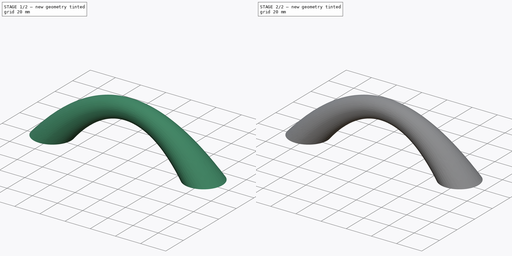
[diagram: build sequence overview — one tinted view per stage of 2, left to right]
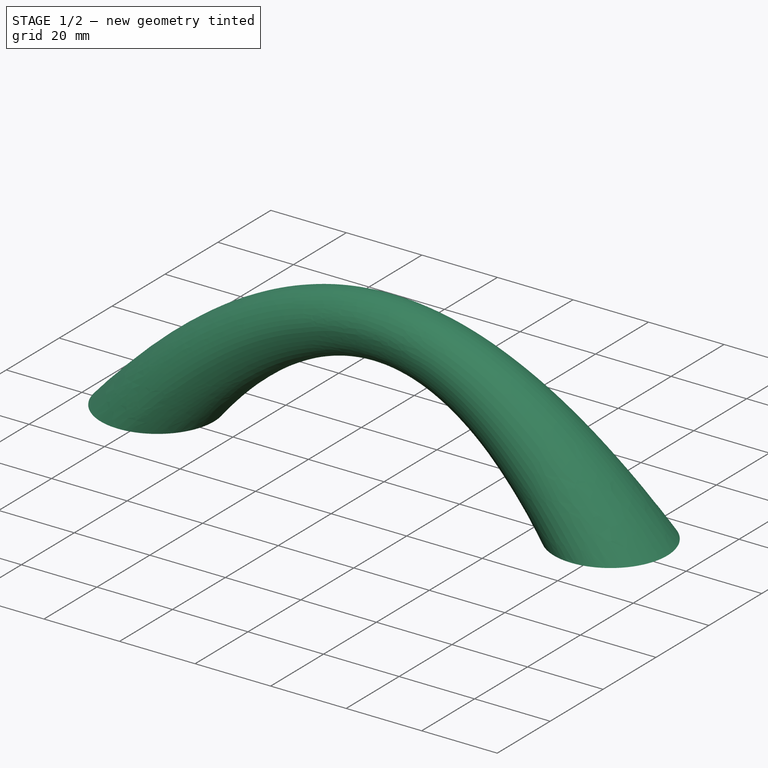
[diagram: stage 1 of 2 — iso view after this stage's code; geometry added in this stage tinted green]
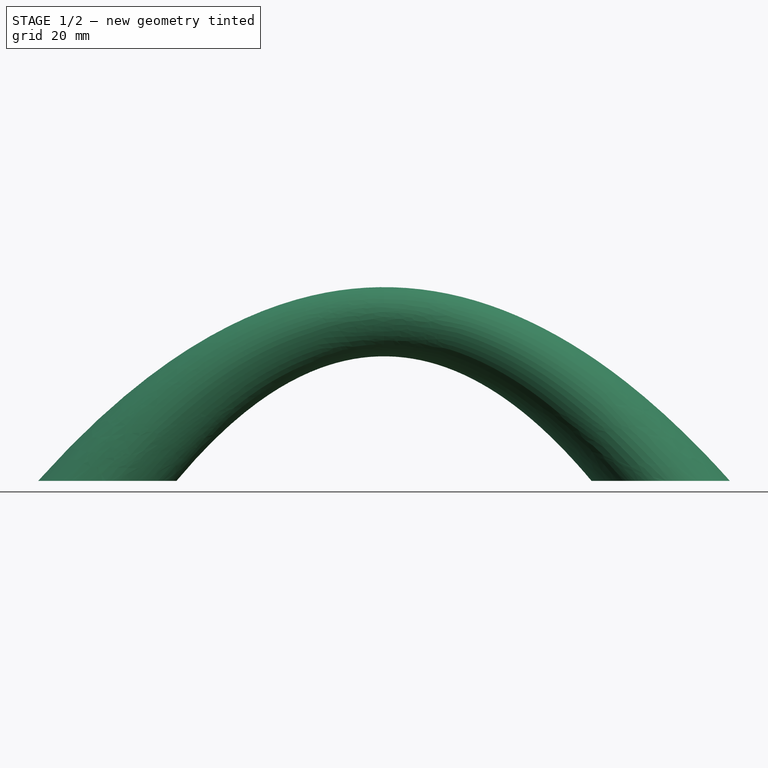
[diagram: stage 1 of 2 — front view after this stage's code; geometry added in this stage tinted green]
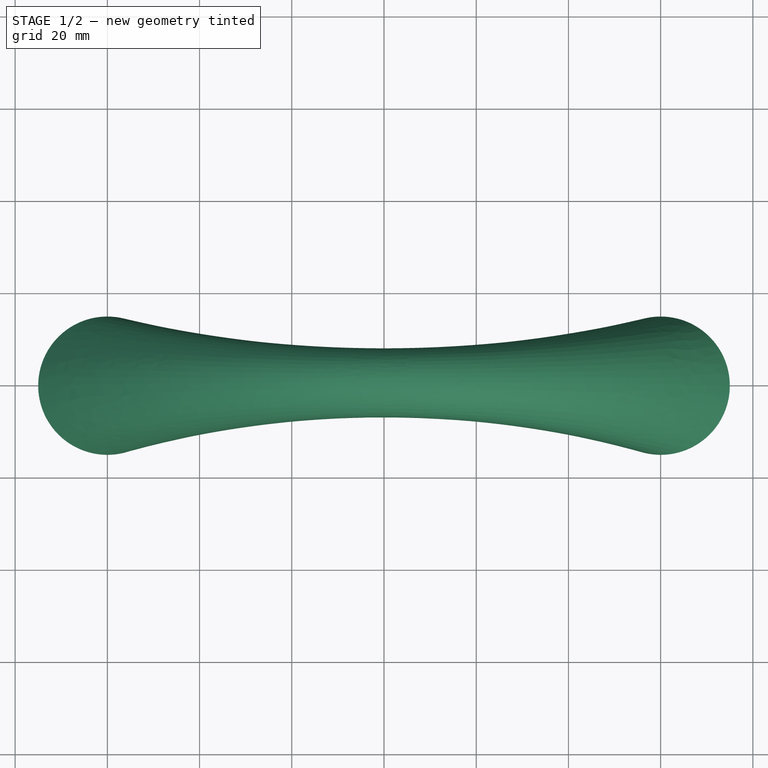
[diagram: stage 1 of 2 — top view after this stage's code; geometry added in this stage tinted green]
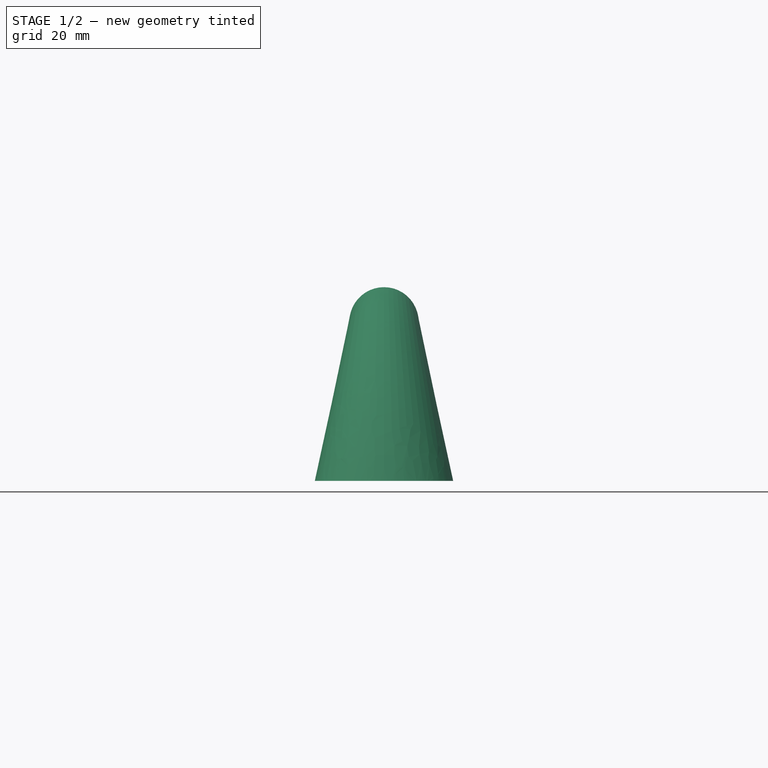
[diagram: stage 1 of 2 — right view after this stage's code; geometry added in this stage tinted green]
FCSTD DOCUMENT  (FreeCAD 2022.111R30764 (Git))
Label: bucket handle
License: All rights reserved
LicenseURL: http://en.wikipedia.org/wiki/All_rights_reserved
objects: Sketcher::SketchObject×5, PartDesign::AdditiveLoft×1, PartDesign::Pocket×1, PartDesign::Body×1
note: 12 computed .brp shape members not serialized (recipe doc carries the construction recipe); baked Part::Feature solids carry a one-line shape summary decoded from their .brp

FEATURE [Sketcher::SketchObject] Sketch001
  FullyConstrained = true
  MapMode = 5
  Support = -> [XY_Plane]
  TreeRank = 12
  sketch-geometry (1):
    g0: Circle CenterX=60 CenterY=0 CenterZ=0 NormalX=0 NormalY=0 NormalZ=1 AngleXU=0 Radius=15
  constraints (3):
    c: PointOnObject(g0,g-1)
    c: Diameter(g0) = 30
    c: DistanceX(g-1,g0) = 60
FEATURE [Sketcher::SketchObject] Sketch
  ExternalGeometry = -> [Sketch001]
  FullyConstrained = true
  MapMode = 5
  Support = -> [XY_Plane]
  TreeRank = 11
  sketch-geometry (1):
    g0: Circle CenterX=-60 CenterY=0 CenterZ=0 NormalX=0 NormalY=0 NormalZ=1 AngleXU=0 Radius=15
  constraints (3):
    c: Equal(g0,g-3)
    c: PointOnObject(g0,g-1)
    c: DistanceX(g0,g-1) = 60
FEATURE [Sketcher::SketchObject] Sketch002
  FullyConstrained = false
  MapMode = 5
  Placement = pos=(0,0,0) rot=(0.57735,0.57735,0.57735;2.0944rad)
  Support = -> [YZ_Plane]
  TreeRank = 13
  sketch-geometry (1):
    g0: Circle CenterX=0 CenterY=34.5052 CenterZ=0 NormalX=0 NormalY=0 NormalZ=1 AngleXU=0 Radius=7.5
  constraints (2):
    c: PointOnObject(g0,g-2)
    c: Diameter(g0) = 15
FEATURE [PartDesign::AdditiveLoft] Loft
  AddSubType = 0
  ClaimChildren = false
  Closed = false
  Fit = 0
  FitJoin = 0
  InnerFit = 0
  InnerFitJoin = 0
  Linearize = true
  NewSolid = false
  Profile = -> Sketch
  Ruled = false
  Sections = -> [Sketch002,Sketch001]
  SplitProfile = false
  Suppress = false
  TreeRank = 14
  _ProfileBasedVersion = 1
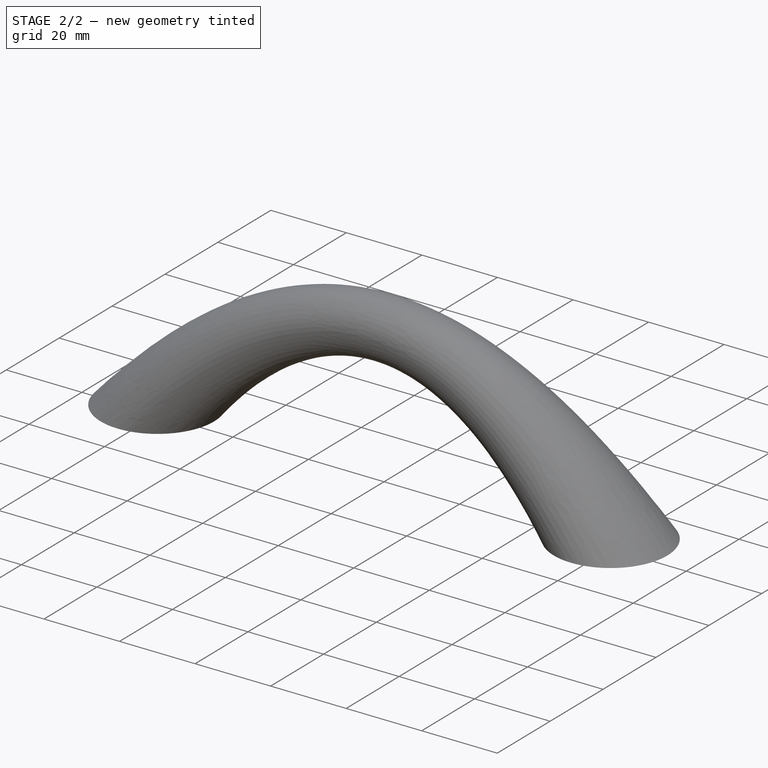
[diagram: stage 2 of 2 — iso view after this stage's code; geometry added in this stage tinted green]
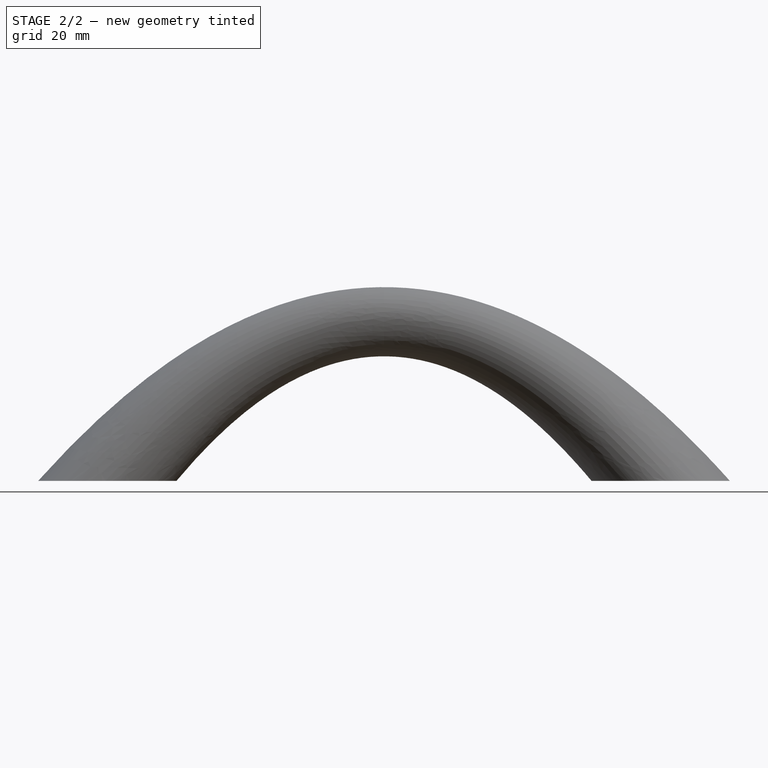
[diagram: stage 2 of 2 — front view after this stage's code; geometry added in this stage tinted green]
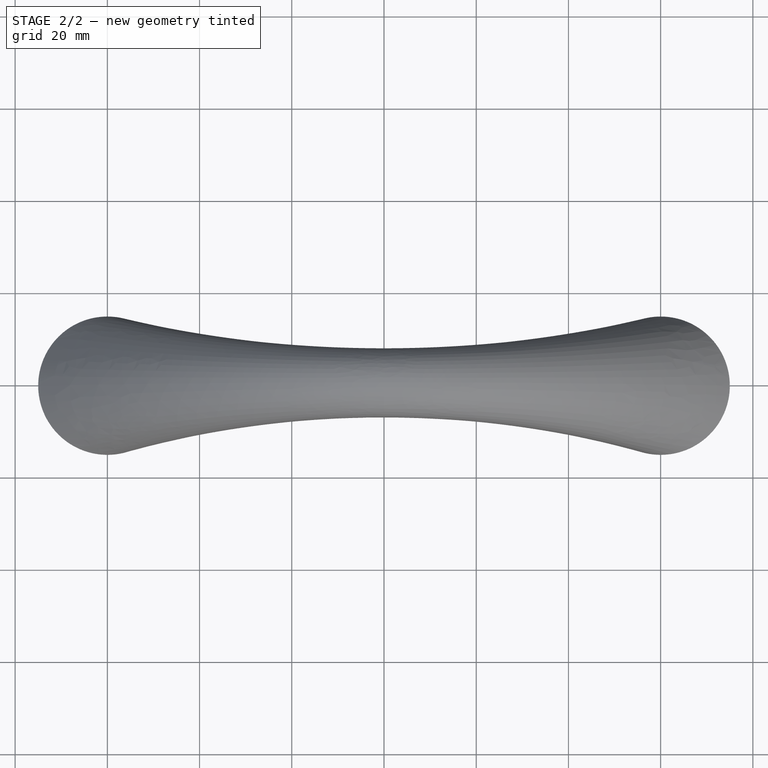
[diagram: stage 2 of 2 — top view after this stage's code; geometry added in this stage tinted green]
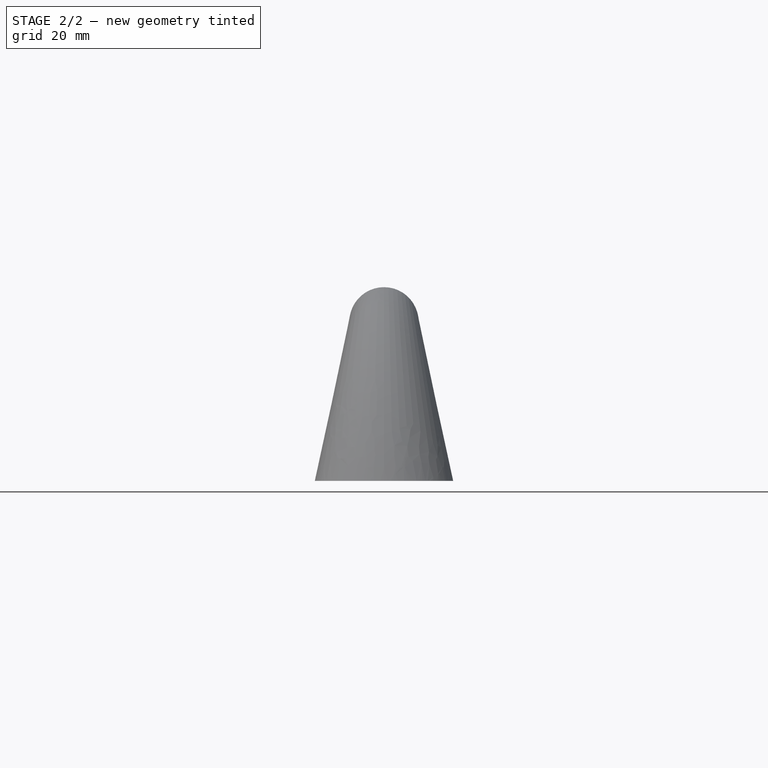
[diagram: stage 2 of 2 — right view after this stage's code; geometry added in this stage tinted green]
FEATURE [Sketcher::SketchObject] Sketch003
  FullyConstrained = true
  MapMode = 5
  Support = -> [XY_Plane]
  TreeRank = 15
FEATURE [Sketcher::SketchObject] Sketch004
  FullyConstrained = true
  MapMode = 5
  Support = -> [XY_Plane]
  TreeRank = 16
  sketch-geometry (2):
    g0: Circle CenterX=-52.5 CenterY=0 CenterZ=0 NormalX=0 NormalY=0 NormalZ=1 AngleXU=0 Radius=1.75
    g1: Circle CenterX=52.5 CenterY=0 CenterZ=0 NormalX=0 NormalY=0 NormalZ=1 AngleXU=0 Radius=1.75
  constraints (5):
    c: PointOnObject(g0,g-1)
    c: Equal(g1,g0)
    c: Symmetric(g1,g0,g-1)
    c: Diameter(g0) = 3.5
    c: DistanceX(g0,g1) = 105
FEATURE [PartDesign::Pocket] Pocket
  AddSubType = 1
  BaseFeature = -> Loft
  CheckUpToFaceLimits = true
  ClaimChildren = false
  Fit = 0
  FitJoin = 0
  InnerFit = 0
  InnerFitJoin = 0
  InnerTaperAngle = 0
  InnerTaperAngleRev = 0
  Length = 18
  Length2 = 100
  Linearize = true
  NewSolid = false
  Profile = -> Sketch004
  Reversed = true
  Suppress = false
  TreeRank = 17
  Type = 0
  _ProfileBasedVersion = 1
  _Version = 1
FEATURE [PartDesign::Body] Body
  AutoGroupSolids = false
  ExportMode = 0
  Group = -> [Sketch,Sketch001,Sketch002,Loft,Sketch003,Sketch004,Pocket]
  Origin = -> Origin
  Tip = -> Pocket
  TreeRank = 10
  _ExportChildren = -> [Loft,Sketch003,Pocket]
  _GroupVersion = 1
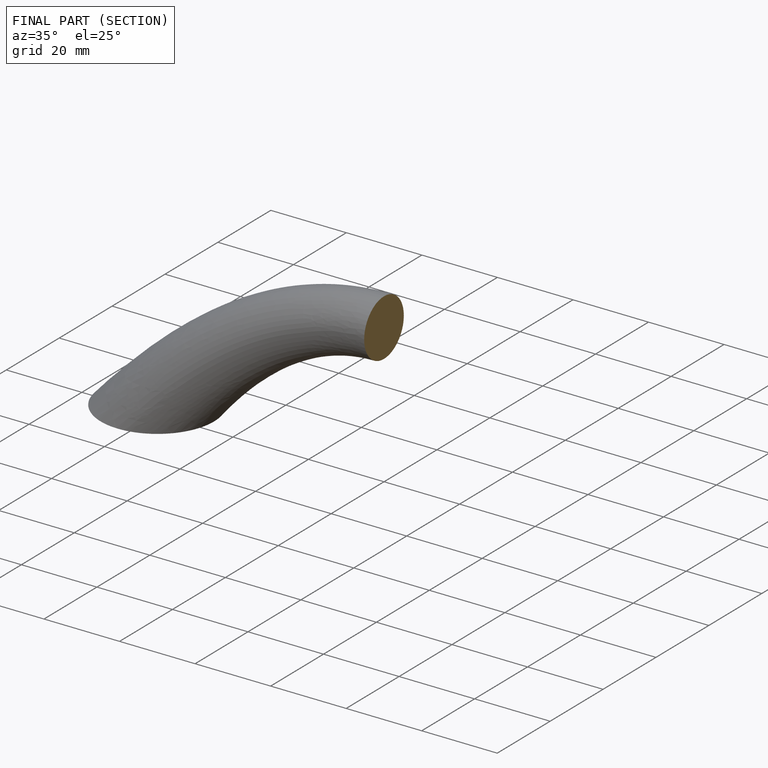
[diagram: finished part — half-section view (interior)]
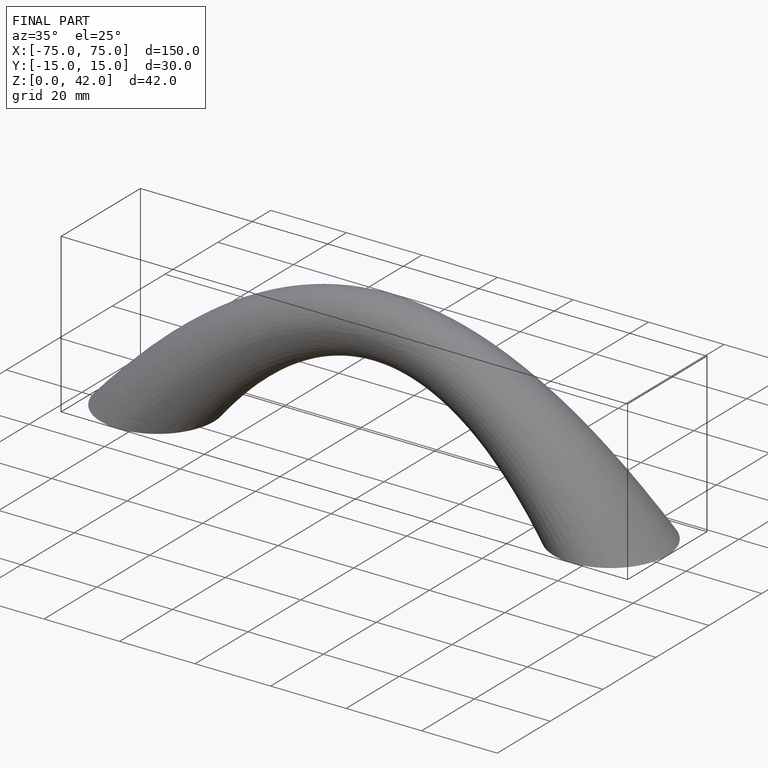
[diagram: finished part — iso view with bounding-box wireframe]
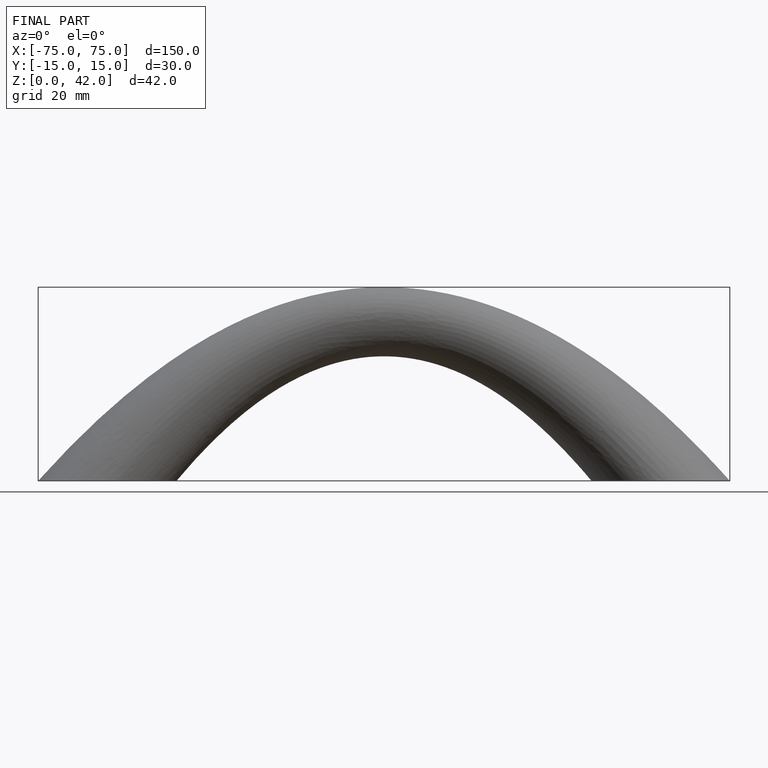
[diagram: finished part — front view with bounding-box wireframe]
